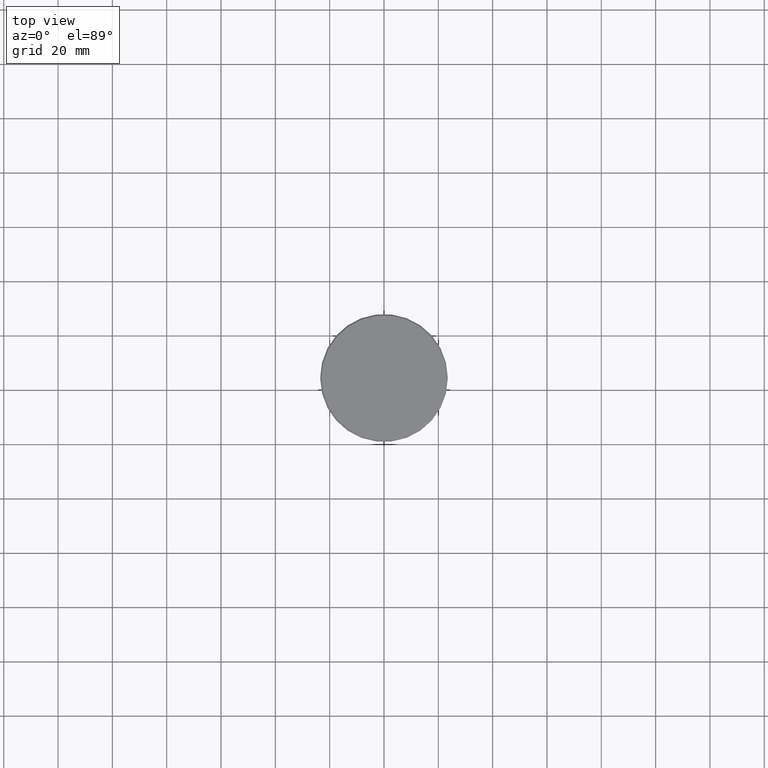
[diagram: clean part render]
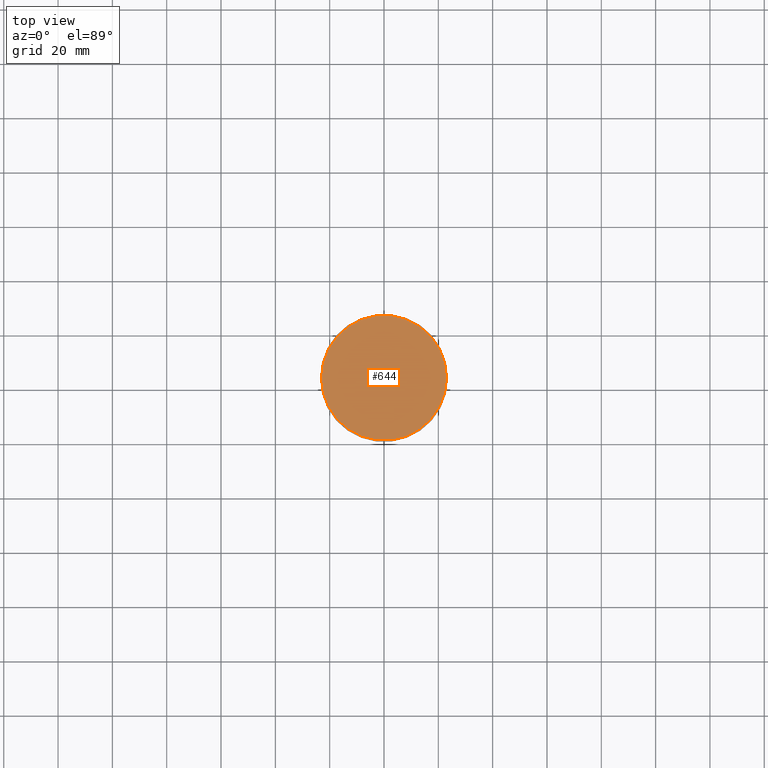
[diagram: same view with one face highlighted and labeled with its STEP entity id]
A machine part, top view. The second image highlights one B-rep face of the part: STEP entity #644.
In plain terms, the highlighted planar face has unit normal (0, -0, 1).
Its self-contained STEP definition (entity closure, byte-faithful):
#8 = AXIS2_PLACEMENT_3D ( 'NONE', #616, #1079, #833 ) ;
#20 = VERTEX_POINT ( 'NONE', #1038 ) ;
#95 = CARTESIAN_POINT ( 'NONE',  ( -23.00000000000005329, 0.000000000000000000, 0.000000000000000000 ) ) ;
#98 = AXIS2_PLACEMENT_3D ( 'NONE', #1181, #816, #365 ) ;
#147 = EDGE_LOOP ( 'NONE', ( #293, #984 ) ) ;
#181 = CIRCLE ( 'NONE', #98, 23.00000000000005329 ) ;
#293 = ORIENTED_EDGE ( 'NONE', *, *, #339, .T. ) ;
#339 = EDGE_CURVE ( 'NONE', #433, #20, #454, .T. ) ;
#340 = DIRECTION ( 'NONE',  ( -0.000000000000000000, -0.000000000000000000, 1.000000000000000000 ) ) ;
#365 = DIRECTION ( 'NONE',  ( 1.000000000000000000, 0.000000000000000000, 0.000000000000000000 ) ) ;
#422 = PLANE ( 'NONE',  #8 ) ;
#433 = VERTEX_POINT ( 'NONE', #95 ) ;
#454 = CIRCLE ( 'NONE', #1007, 23.00000000000005329 ) ;
#616 = CARTESIAN_POINT ( 'NONE',  ( 0.000000000000000000, 0.000000000000000000, 0.000000000000000000 ) ) ;
#621 = DIRECTION ( 'NONE',  ( 1.000000000000000000, 0.000000000000000000, 0.000000000000000000 ) ) ;
#644 = ADVANCED_FACE ( 'NONE', ( #889 ), #422, .T. ) ;
#816 = DIRECTION ( 'NONE',  ( -0.000000000000000000, -0.000000000000000000, 1.000000000000000000 ) ) ;
#833 = DIRECTION ( 'NONE',  ( 1.000000000000000000, 0.000000000000000000, 0.000000000000000000 ) ) ;
#838 = EDGE_CURVE ( 'NONE', #20, #433, #181, .T. ) ;
#889 = FACE_OUTER_BOUND ( 'NONE', #147, .T. ) ;
#984 = ORIENTED_EDGE ( 'NONE', *, *, #838, .T. ) ;
#1007 = AXIS2_PLACEMENT_3D ( 'NONE', #1156, #340, #621 ) ;
#1038 = CARTESIAN_POINT ( 'NONE',  ( 23.00000000000005329, 2.847303808017599689E-15, 0.000000000000000000 ) ) ;
#1079 = DIRECTION ( 'NONE',  ( 0.000000000000000000, -0.000000000000000000, 1.000000000000000000 ) ) ;
#1156 = CARTESIAN_POINT ( 'NONE',  ( 0.000000000000000000, 0.000000000000000000, 0.000000000000000000 ) ) ;
#1181 = CARTESIAN_POINT ( 'NONE',  ( 0.000000000000000000, 0.000000000000000000, 0.000000000000000000 ) ) ;